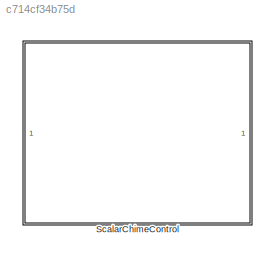
MODEL slx_c714cf34b75d
KIND library
CONFIG AbsTol = auto
CONFIG EnableMultiTasking = off
CONFIG FixedStep = auto
CONFIG MaxStep = auto
CONFIG MinStep = auto
CONFIG RelTol = 1e-3
CONFIG SampleTimeConstraint = Unconstrained
CONFIG SolverName = VariableStepAuto
CONFIG StartTime = 0.0
CONFIG StopTime = 10.0
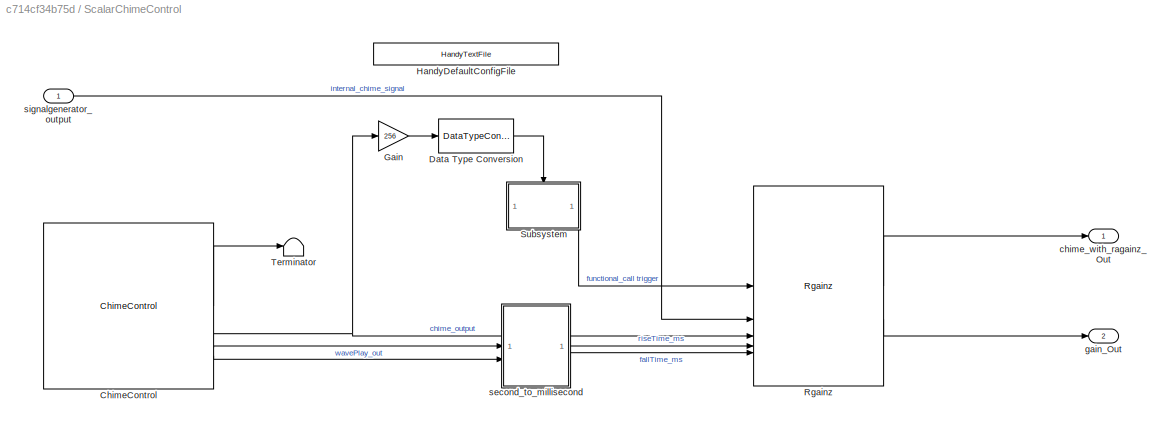
BLOCK [SubSystem] ScalarChimeControl
BLOCK [Reference] ScalarChimeControl/ChimeControl  REF=ChimeControlLibBtc/ChimeControl
  SourceBlock = ChimeControlLibBtc/ChimeControl
  SourceProductName = Bose Blocklib
  SourceType = Chimes ChimeControl
BLOCK [DataTypeConversion] ScalarChimeControl/Data Type Conversion
  OutDataTypeStr = uint16
  RndMeth = Floor
  SaturateOnIntegerOverflow = off
BLOCK [Gain] ScalarChimeControl/Gain
  Gain = 256
BLOCK [Reference] ScalarChimeControl/HandyDefaultConfigFile  REF=HandyTextFile/HandyTextFile
  SourceBlock = HandyTextFile/HandyTextFile
  SourceType = Talaria Handy Text File
BLOCK [Reference] ScalarChimeControl/Rgainz  REF=RgainzBtc/Rgainz
  SourceBlock = RgainzBtc/Rgainz
  SourceProductName = Bose Blocklib
  SourceType = Chimes Rgainz
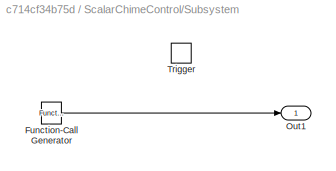
BLOCK [SubSystem] ScalarChimeControl/Subsystem
BLOCK [Reference] ScalarChimeControl/Subsystem/Function-Call Generator  REF=simulink/Ports &
Subsystems/Function-Call
Generator
  SourceBlock = simulink/Ports &\nSubsystems/Function-Call\nGenerator
  SourceType = Function-Call Generator
BLOCK [Outport] ScalarChimeControl/Subsystem/Out1
  VectorParamsAs1DForOutWhenUnconnected = off
BLOCK [TriggerPort] ScalarChimeControl/Subsystem/Trigger
  PortDimensions = 1
  StatesWhenEnabling = held
  TriggerType = either
  VariantControl = Variant
BLOCK [Terminator] ScalarChimeControl/Terminator
BLOCK [Outport] ScalarChimeControl/chime_with_ragainz_Out
  VectorParamsAs1DForOutWhenUnconnected = off
BLOCK [Outport] ScalarChimeControl/gain_Out
  Port = 2
  VectorParamsAs1DForOutWhenUnconnected = off
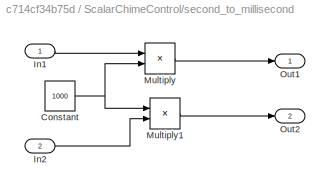
BLOCK [SubSystem] ScalarChimeControl/second_to_millisecond
BLOCK [Constant] ScalarChimeControl/second_to_millisecond/Constant
  Value = 1000
BLOCK [Inport] ScalarChimeControl/second_to_millisecond/In1
BLOCK [Inport] ScalarChimeControl/second_to_millisecond/In2
  Port = 2
BLOCK [Product] ScalarChimeControl/second_to_millisecond/Multiply
BLOCK [Product] ScalarChimeControl/second_to_millisecond/Multiply1
BLOCK [Outport] ScalarChimeControl/second_to_millisecond/Out1
  VectorParamsAs1DForOutWhenUnconnected = off
BLOCK [Outport] ScalarChimeControl/second_to_millisecond/Out2
  Port = 2
  VectorParamsAs1DForOutWhenUnconnected = off
BLOCK [Inport] ScalarChimeControl/signalgenerator_output
LINE ScalarChimeControl/ChimeControl:1 -> ScalarChimeControl/Terminator:1
NET ScalarChimeControl/ChimeControl:2 -> ScalarChimeControl/Gain:1, ScalarChimeControl/Rgainz:3
LINE ScalarChimeControl/ChimeControl:3 -> ScalarChimeControl/second_to_millisecond:1
LINE ScalarChimeControl/ChimeControl:4 -> ScalarChimeControl/second_to_millisecond:2
LINE ScalarChimeControl/Data Type Conversion:1 -> ScalarChimeControl/Subsystem:trigger
LINE ScalarChimeControl/Gain:1 -> ScalarChimeControl/Data Type Conversion:1
LINE ScalarChimeControl/Rgainz:1 -> ScalarChimeControl/chime_with_ragainz_Out:1
LINE ScalarChimeControl/Rgainz:2 -> ScalarChimeControl/gain_Out:1
LINE ScalarChimeControl/Subsystem/Function-Call Generator:1 -> ScalarChimeControl/Subsystem/Out1:1
LINE ScalarChimeControl/Subsystem:1 -> ScalarChimeControl/Rgainz:1
NET ScalarChimeControl/second_to_millisecond/Constant:1 -> ScalarChimeControl/second_to_millisecond/Multiply1:1, ScalarChimeControl/second_to_millisecond/Multiply:2
LINE ScalarChimeControl/second_to_millisecond/In1:1 -> ScalarChimeControl/second_to_millisecond/Multiply:1
LINE ScalarChimeControl/second_to_millisecond/In2:1 -> ScalarChimeControl/second_to_millisecond/Multiply1:2
LINE ScalarChimeControl/second_to_millisecond/Multiply1:1 -> ScalarChimeControl/second_to_millisecond/Out2:1
LINE ScalarChimeControl/second_to_millisecond/Multiply:1 -> ScalarChimeControl/second_to_millisecond/Out1:1
LINE ScalarChimeControl/second_to_millisecond:1 -> ScalarChimeControl/Rgainz:4
LINE ScalarChimeControl/second_to_millisecond:2 -> ScalarChimeControl/Rgainz:5
LINE ScalarChimeControl/signalgenerator_output:1 -> ScalarChimeControl/Rgainz:2
note: NET lines group one-source signal fan-out (src -> all destinations, sorted); 1:1 wires keep LINE
